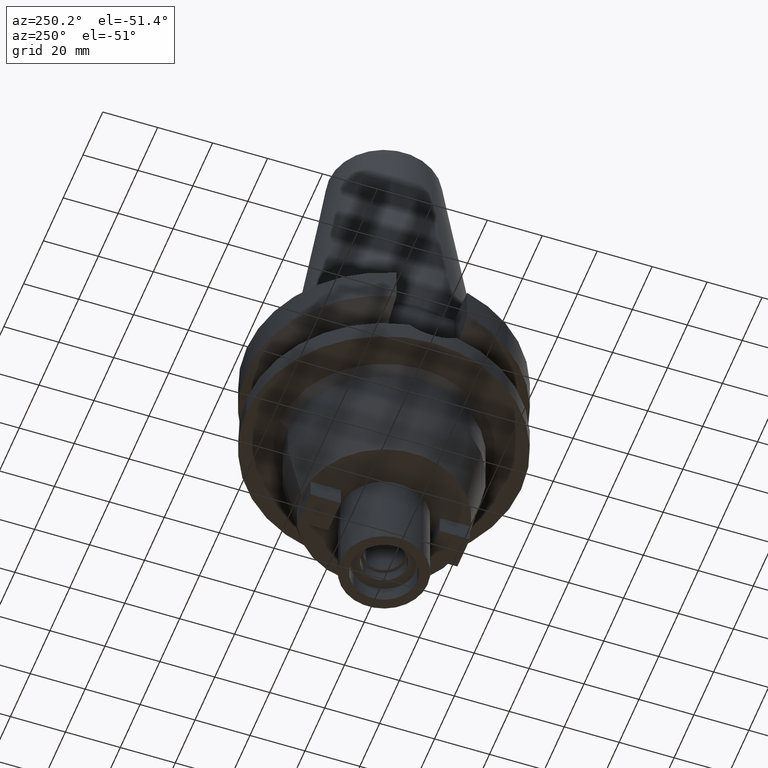
[diagram: clean part render]
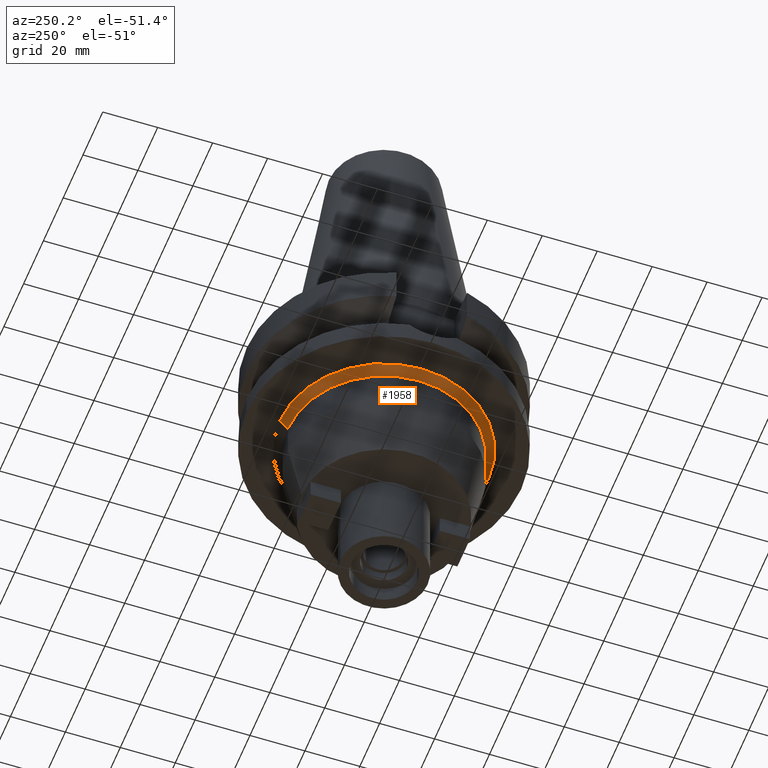
[diagram: same view with one face highlighted and labeled with its STEP entity id]
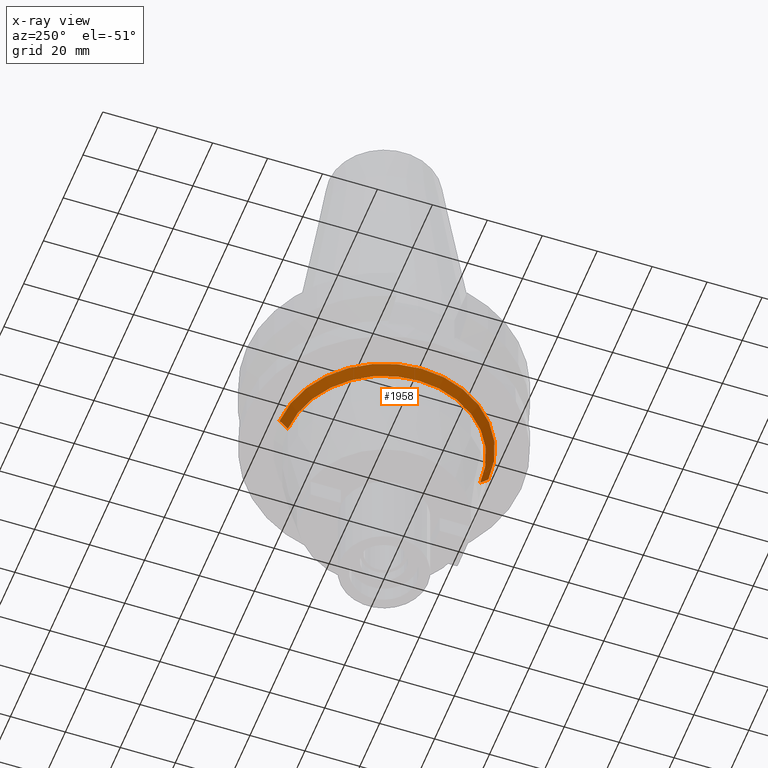
[diagram: x-ray of the same camera — body ghosted, the highlighted face saturated]
A machine part, auxiliary view. The second image highlights one B-rep face of the part: STEP entity #1958.
The next image is the same camera in x-ray: the body ghosted, the highlighted face saturated — about 0% of this face is hidden behind the body in this view.
In plain terms, the highlighted conical surface has half-angle 45 deg.
Its self-contained STEP definition (entity closure, byte-faithful):
#472=DIRECTION('',(0.E0,-7.071067811865E-1,-7.071067811866E-1));
#473=VECTOR('',#472,4.242640687119E0);
#474=CARTESIAN_POINT('',(0.E0,3.8E1,-3.8E1));
#475=LINE('',#474,#473);
#487=DIRECTION('',(0.E0,7.071067811865E-1,-7.071067811866E-1));
#488=VECTOR('',#487,4.242640687119E0);
#489=CARTESIAN_POINT('',(0.E0,-3.8E1,-3.8E1));
#490=LINE('',#489,#488);
#494=CARTESIAN_POINT('',(0.E0,0.E0,-4.1E1));
#495=DIRECTION('',(0.E0,0.E0,-1.E0));
#496=DIRECTION('',(0.E0,-1.E0,0.E0));
#497=AXIS2_PLACEMENT_3D('',#494,#495,#496);
#518=CARTESIAN_POINT('',(0.E0,0.E0,-3.8E1));
#519=DIRECTION('',(0.E0,0.E0,-1.E0));
#520=DIRECTION('',(0.E0,-1.E0,0.E0));
#521=AXIS2_PLACEMENT_3D('',#518,#519,#520);
#1372=CARTESIAN_POINT('',(0.E0,3.5E1,-4.1E1));
#1373=VERTEX_POINT('',#1372);
#1374=CARTESIAN_POINT('',(0.E0,-3.5E1,-4.1E1));
#1375=VERTEX_POINT('',#1374);
#1376=CARTESIAN_POINT('',(0.E0,3.8E1,-3.8E1));
#1377=VERTEX_POINT('',#1376);
#1378=CARTESIAN_POINT('',(0.E0,-3.8E1,-3.8E1));
#1379=VERTEX_POINT('',#1378);
#1946=CARTESIAN_POINT('',(0.E0,0.E0,-3.95E1));
#1947=DIRECTION('',(0.E0,0.E0,1.E0));
#1948=DIRECTION('',(0.E0,1.E0,0.E0));
#1949=AXIS2_PLACEMENT_3D('',#1946,#1947,#1948);
#1950=CONICAL_SURFACE('',#1949,3.65E1,4.5E1);
#1951=ORIENTED_EDGE('',*,*,#1936,.F.);
#1953=ORIENTED_EDGE('',*,*,#1952,.F.);
#1954=ORIENTED_EDGE('',*,*,#1939,.T.);
#1955=ORIENTED_EDGE('',*,*,#1910,.T.);
#1956=EDGE_LOOP('',(#1951,#1953,#1954,#1955));
#1957=FACE_OUTER_BOUND('',#1956,.F.);
#498=CIRCLE('',#497,3.5E1);
#522=CIRCLE('',#521,3.8E1);
#1910=EDGE_CURVE('',#1375,#1373,#498,.T.);
#1936=EDGE_CURVE('',#1377,#1373,#475,.T.);
#1939=EDGE_CURVE('',#1379,#1375,#490,.T.);
#1952=EDGE_CURVE('',#1379,#1377,#522,.T.);
#1958=ADVANCED_FACE('',(#1957),#1950,.T.);